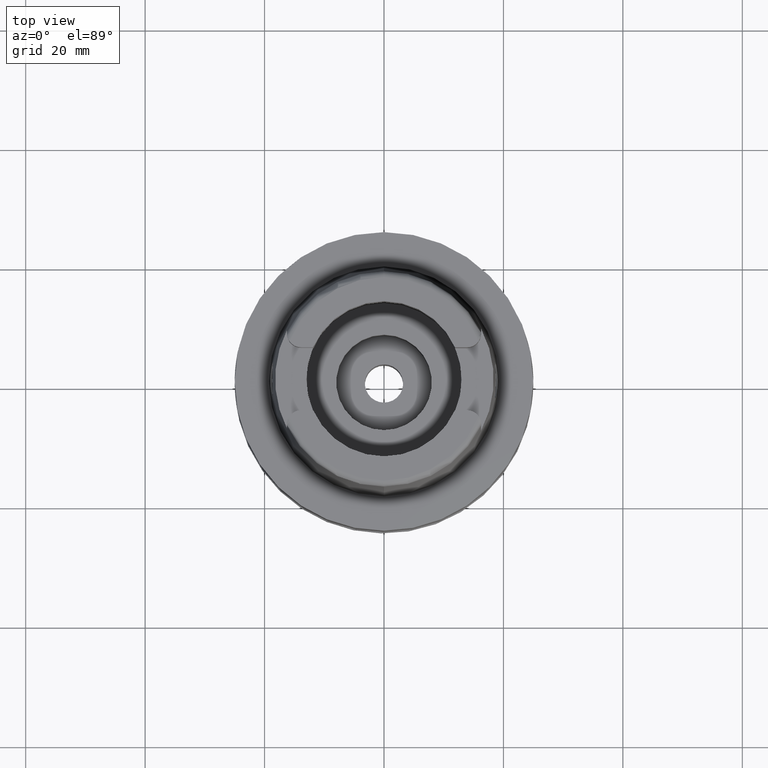
[diagram: clean part render]
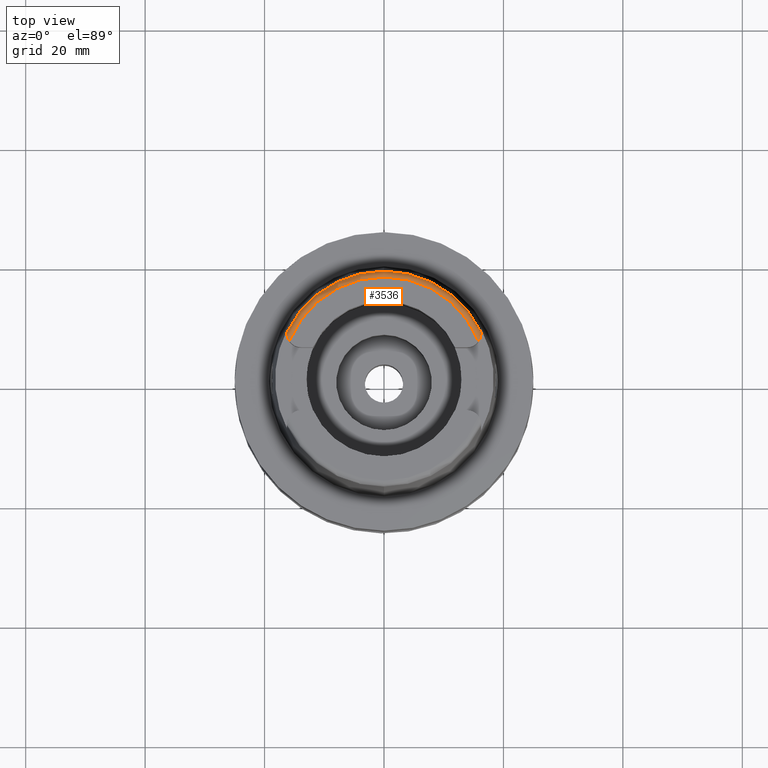
[diagram: same view with one face highlighted and labeled with its STEP entity id]
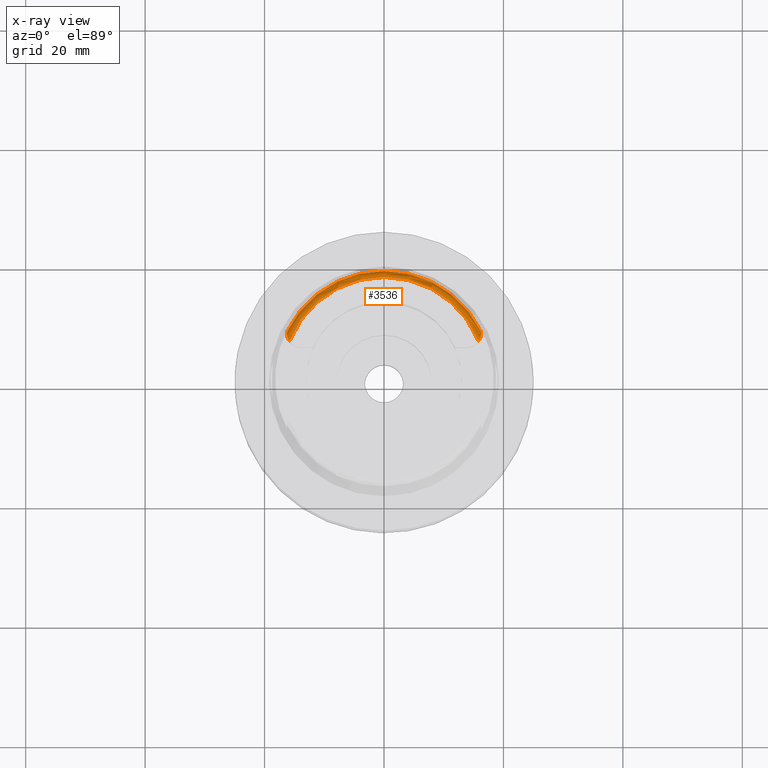
[diagram: x-ray of the same camera — body ghosted, the highlighted face saturated]
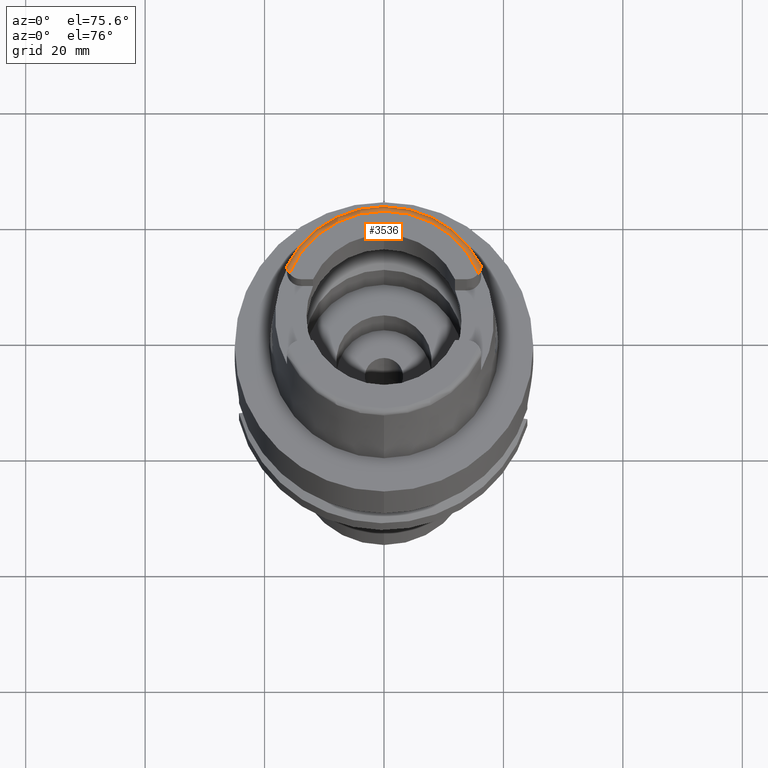
[diagram: same view with one face highlighted and labeled with its STEP entity id]
A machine part, top view. The second image highlights one B-rep face of the part: STEP entity #3536.
The next image is the same camera in x-ray: the body ghosted, the highlighted face saturated — about 0% of this face is hidden behind the body in this view.
A second angle (auxiliary view) of the same face is appended — the face is thin or edge-on in the first view.
In plain terms, the highlighted toroidal blend (fillet) surface has major radius 17.0488 mm and minor (blend) radius 1 mm.
Its self-contained STEP definition (entity closure, byte-faithful):
#13 = AXIS2_PLACEMENT_3D ( 'NONE', #879, #40, #4678 ) ;
#40 = DIRECTION ( 'NONE',  ( 0.0000000000000000000, 0.0000000000000000000, -1.000000000000000000 ) ) ;
#79 = B_SPLINE_CURVE_WITH_KNOTS ( 'NONE', 3,
 ( #589, #165, #1349, #3031 ),
 .UNSPECIFIED., .F., .F.,
 ( 4, 4 ),
 ( 0.0000000000000000000, 1.000000000000000000 ),
 .UNSPECIFIED. ) ;
#145 = CARTESIAN_POINT ( 'NONE',  ( -16.23935494077172947, 7.335910855000000730, 24.63767207810960969 ) ) ;
#165 = CARTESIAN_POINT ( 'NONE',  ( -16.26000000000000156, 7.756979617624322643, 24.28205642436010336 ) ) ;
#219 = CARTESIAN_POINT ( 'NONE',  ( 16.22839670243273247, 7.245355834585446964, 24.69784615082136625 ) ) ;
#231 = CARTESIAN_POINT ( 'NONE',  ( -16.08058035240569694, 6.733786588547267193, 24.92888816074173874 ) ) ;
#247 = CARTESIAN_POINT ( 'NONE',  ( 16.25344741752731892, 7.471586145477474794, 24.54349424203698860 ) ) ;
#328 = VERTEX_POINT ( 'NONE', #4964 ) ;
#503 = DIRECTION ( 'NONE',  ( 0.0000000000000000000, 1.000000000000000000, 0.0000000000000000000 ) ) ;
#570 = CARTESIAN_POINT ( 'NONE',  ( -16.22521617187599929, 7.243413556453329072, 24.69467769267489743 ) ) ;
#580 = B_SPLINE_CURVE_WITH_KNOTS ( 'NONE', 3,
 ( #5472, #3365, #2936, #4277 ),
 .UNSPECIFIED., .F., .F.,
 ( 4, 4 ),
 ( 0.0000000000000000000, 1.000000000000000000 ),
 .UNSPECIFIED. ) ;
#589 = CARTESIAN_POINT ( 'NONE',  ( -16.26000000000000156, 7.649999999999999467, 24.38968791394999869 ) ) ;
#825 = CARTESIAN_POINT ( 'NONE',  ( 0.0000000000000000000, 18.04750486565000145, 24.04993752584000077 ) ) ;
#828 = CIRCLE ( 'NONE', #3025, 18.04750486565000145 ) ;
#832 = EDGE_CURVE ( 'NONE', #1632, #2681, #5112, .T. ) ;
#879 = CARTESIAN_POINT ( 'NONE',  ( 0.0000000000000000000, 0.0000000000000000000, 24.04993752584000077 ) ) ;
#919 = TOROIDAL_SURFACE ( 'NONE', #4720, 17.04875252221999560, 1.000000000000000000 ) ;
#981 = CARTESIAN_POINT ( 'NONE',  ( -16.00841666764786453, 6.584475460020398074, 24.96566545704687101 ) ) ;
#1105 = CARTESIAN_POINT ( 'NONE',  ( 15.90697457532996850, 6.397319259819720827, 24.99999999999999645 ) ) ;
#1153 = EDGE_CURVE ( 'NONE', #328, #4174, #580, .T. ) ;
#1287 = VERTEX_POINT ( 'NONE', #3134 ) ;
#1314 = DIRECTION ( 'NONE',  ( 0.0000000000000000000, 0.0000000000000000000, -1.000000000000000000 ) ) ;
#1349 = CARTESIAN_POINT ( 'NONE',  ( -16.26000000000000156, 7.817317801012321432, 24.16880882101343886 ) ) ;
#1401 = CARTESIAN_POINT ( 'NONE',  ( 16.26000000000000512, 7.611323203165833995, 24.42860038482855956 ) ) ;
#1413 = CARTESIAN_POINT ( 'NONE',  ( -16.25642365100316056, 7.476984764354736690, 24.54393345577880936 ) ) ;
#1458 = CARTESIAN_POINT ( 'NONE',  ( 0.0000000000000000000, 0.0000000000000000000, 24.04993752584000077 ) ) ;
#1482 = CARTESIAN_POINT ( 'NONE',  ( 15.84131538932999739, 6.301800480795000325, 25.00000000000000000 ) ) ;
#1494 = CARTESIAN_POINT ( 'NONE',  ( -15.96625585798465785, 6.504189616315832367, 24.98176062403130970 ) ) ;
#1632 = VERTEX_POINT ( 'NONE', #3210 ) ;
#1808 = ORIENTED_EDGE ( 'NONE', *, *, #4490, .F. ) ;
#1824 = CARTESIAN_POINT ( 'NONE',  ( -16.23496557060675372, 7.304328783145807691, 24.65775830273903324 ) ) ;
#1899 = CARTESIAN_POINT ( 'NONE',  ( 16.14804313198780861, 6.925410722144819786, 24.85478500402254198 ) ) ;
#1922 = CARTESIAN_POINT ( 'NONE',  ( 16.20468902184572713, 7.121967773455988748, 24.76576639495302246 ) ) ;
#1926 = ORIENTED_EDGE ( 'NONE', *, *, #1153, .F. ) ;
#2119 = B_SPLINE_CURVE_WITH_KNOTS ( 'NONE', 3,
 ( #4023, #4837, #3157, #2743, #1494, #4779, #981, #231, #3607, #3183, #2661, #4365, #570, #1824, #145, #1413, #4807, #2692 ),
 .UNSPECIFIED., .F., .F.,
 ( 4, 2, 2, 2, 2, 2, 2, 2, 4 ),
 ( 0.0000000000000000000, 0.1250000000000023315, 0.1875000000000013600, 0.2500000000000003886, 0.4999999999999979461, 0.6249999999999981126, 0.6874999999999970024, 0.7499999999999960032, 1.000000000000000000 ),
 .UNSPECIFIED. ) ;
#2365 = CARTESIAN_POINT ( 'NONE',  ( 16.25516810167746939, 7.496549958051121010, 24.52447694836609315 ) ) ;
#2587 = B_SPLINE_CURVE_WITH_KNOTS ( 'NONE', 3,
 ( #5206, #1401, #3117, #2365, #247, #3592, #4063, #219, #1922, #1899, #3652, #3230, #4520, #5284, #4874, #5308, #1105, #1482 ),
 .UNSPECIFIED., .F., .F.,
 ( 4, 2, 2, 2, 2, 2, 2, 2, 4 ),
 ( 0.0000000000000000000, 0.1250000000000021649, 0.1875000000000024147, 0.2500000000000026645, 0.5000000000000051070, 0.6250000000000065503, 0.6875000000000066613, 0.7500000000000067724, 1.000000000000000000 ),
 .UNSPECIFIED. ) ;
#2661 = CARTESIAN_POINT ( 'NONE',  ( -16.20091124494840074, 7.119143384441859901, 24.76404916784067112 ) ) ;
#2681 = VERTEX_POINT ( 'NONE', #3638 ) ;
#2692 = CARTESIAN_POINT ( 'NONE',  ( -16.26000000000000156, 7.649999999999999467, 24.38968791394999869 ) ) ;
#2696 = ORIENTED_EDGE ( 'NONE', *, *, #4269, .F. ) ;
#2743 = CARTESIAN_POINT ( 'NONE',  ( -15.95142052834806812, 6.477598223787882858, 24.98610333259528105 ) ) ;
#2936 = CARTESIAN_POINT ( 'NONE',  ( 16.26000000000000156, 7.756962572982235571, 24.28207357286040491 ) ) ;
#3025 = AXIS2_PLACEMENT_3D ( 'NONE', #1458, #4322, #503 ) ;
#3031 = CARTESIAN_POINT ( 'NONE',  ( -16.26000040461999774, 7.831014550164000276, 24.04994510391000162 ) ) ;
#3084 = ORIENTED_EDGE ( 'NONE', *, *, #832, .T. ) ;
#3087 = CARTESIAN_POINT ( 'NONE',  ( 16.26000000000000156, 7.649999999999999467, 24.38968791394999869 ) ) ;
#3117 = CARTESIAN_POINT ( 'NONE',  ( 16.25906981596299516, 7.568094461879278256, 24.46716170229239751 ) ) ;
#3134 = CARTESIAN_POINT ( 'NONE',  ( -16.26000040461999774, 7.831014550164000276, 24.04994510391000162 ) ) ;
#3157 = CARTESIAN_POINT ( 'NONE',  ( -15.90587674391639261, 6.399456462586288197, 24.99652583314882293 ) ) ;
#3183 = CARTESIAN_POINT ( 'NONE',  ( -16.18554076064008385, 7.055521886518313579, 24.79586306668399232 ) ) ;
#3210 = CARTESIAN_POINT ( 'NONE',  ( -15.84131538932999739, 6.301800480794000237, 25.00000000000000000 ) ) ;
#3230 = CARTESIAN_POINT ( 'NONE',  ( 16.09036084666226429, 6.766916573822472358, 24.91401646659290492 ) ) ;
#3317 = ORIENTED_EDGE ( 'NONE', *, *, #4168, .F. ) ;
#3365 = CARTESIAN_POINT ( 'NONE',  ( 16.26000000000000156, 7.817315016195341748, 24.16882291091421564 ) ) ;
#3424 = AXIS2_PLACEMENT_3D ( 'NONE', #5478, #1314, #3478 ) ;
#3478 = DIRECTION ( 'NONE',  ( -0.9291773910543710269, 0.3696341109169885564, 0.0000000000000000000 ) ) ;
#3536 = ADVANCED_FACE ( 'NONE', ( #5425 ), #919, .T. ) ;
#3540 = CARTESIAN_POINT ( 'NONE',  ( -16.26000000000000156, 7.649999999999999467, 24.38968791394999869 ) ) ;
#3592 = CARTESIAN_POINT ( 'NONE',  ( 16.24895309171505176, 7.419467146579104444, 24.58135325267140558 ) ) ;
#3607 = CARTESIAN_POINT ( 'NONE',  ( -16.12967067124113640, 6.861665314423088802, 24.88364652657513432 ) ) ;
#3638 = CARTESIAN_POINT ( 'NONE',  ( 15.84131538932999739, 6.301800480795000325, 25.00000000000000000 ) ) ;
#3652 = CARTESIAN_POINT ( 'NONE',  ( 16.12647088039700449, 6.861143724296863589, 24.88072019579882266 ) ) ;
#3699 = VERTEX_POINT ( 'NONE', #3540 ) ;
#3736 = DIRECTION ( 'NONE',  ( -0.0008255998758100714869, -0.9999996591923645539, 0.0000000000000000000 ) ) ;
#3868 = ORIENTED_EDGE ( 'NONE', *, *, #4786, .F. ) ;
#4023 = CARTESIAN_POINT ( 'NONE',  ( -15.84131538932999739, 6.301800480794000237, 25.00000000000000000 ) ) ;
#4063 = CARTESIAN_POINT ( 'NONE',  ( 16.24635612508560456, 7.393772195971195949, 24.59922458510065013 ) ) ;
#4068 = EDGE_LOOP ( 'NONE', ( #3084, #1808, #1926, #3317, #3868, #2696, #4674 ) ) ;
#4145 = DIRECTION ( 'NONE',  ( 0.0000000000000000000, 0.0000000000000000000, 1.000000000000000000 ) ) ;
#4168 = EDGE_CURVE ( 'NONE', #4729, #328, #828, .T. ) ;
#4174 = VERTEX_POINT ( 'NONE', #3087 ) ;
#4269 = EDGE_CURVE ( 'NONE', #3699, #1287, #79, .T. ) ;
#4277 = CARTESIAN_POINT ( 'NONE',  ( 16.26000000000000156, 7.649999999999999467, 24.38968791394999869 ) ) ;
#4322 = DIRECTION ( 'NONE',  ( 0.0000000000000000000, 0.0000000000000000000, -1.000000000000000000 ) ) ;
#4365 = CARTESIAN_POINT ( 'NONE',  ( -16.21967615664465967, 7.212592958068883675, 24.71249920125627142 ) ) ;
#4367 = CIRCLE ( 'NONE', #13, 18.04750486565000145 ) ;
#4490 = EDGE_CURVE ( 'NONE', #4174, #2681, #2587, .T. ) ;
#4520 = CARTESIAN_POINT ( 'NONE',  ( 16.07769908709887474, 6.735869355588694596, 24.92418080404587144 ) ) ;
#4674 = ORIENTED_EDGE ( 'NONE', *, *, #5464, .F. ) ;
#4678 = DIRECTION ( 'NONE',  ( -0.9009556354130529021, 0.4339112155930774928, 0.0000000000000000000 ) ) ;
#4720 = AXIS2_PLACEMENT_3D ( 'NONE', #5040, #4145, #3736 ) ;
#4729 = VERTEX_POINT ( 'NONE', #825 ) ;
#4779 = CARTESIAN_POINT ( 'NONE',  ( -15.99515335809936367, 6.558454667888338641, 24.97133812347777138 ) ) ;
#4786 = EDGE_CURVE ( 'NONE', #1287, #4729, #4367, .T. ) ;
#4807 = CARTESIAN_POINT ( 'NONE',  ( -16.26000000000000867, 7.572638004034232040, 24.46752130921433732 ) ) ;
#4837 = CARTESIAN_POINT ( 'NONE',  ( -15.87413174455794262, 6.349540612442419629, 24.99999999999999289 ) ) ;
#4874 = CARTESIAN_POINT ( 'NONE',  ( 16.03650687744163505, 6.642597593092695263, 24.95134675376048605 ) ) ;
#4964 = CARTESIAN_POINT ( 'NONE',  ( 16.25997406183000393, 7.831071151783000950, 24.04993752584000077 ) ) ;
#5040 = CARTESIAN_POINT ( 'NONE',  ( 0.0000000000000000000, 0.0000000000000000000, 24.00000000000000000 ) ) ;
#5112 = CIRCLE ( 'NONE', #3424, 17.04875252221999560 ) ;
#5206 = CARTESIAN_POINT ( 'NONE',  ( 16.26000000000000156, 7.649999999999999467, 24.38968791394999869 ) ) ;
#5284 = CARTESIAN_POINT ( 'NONE',  ( 16.05117478004920173, 6.674543088104194943, 24.94264063999501602 ) ) ;
#5308 = CARTESIAN_POINT ( 'NONE',  ( 15.96834533945842516, 6.501558406581732008, 24.98609907250299500 ) ) ;
#5425 = FACE_OUTER_BOUND ( 'NONE', #4068, .T. ) ;
#5464 = EDGE_CURVE ( 'NONE', #1632, #3699, #2119, .T. ) ;
#5472 = CARTESIAN_POINT ( 'NONE',  ( 16.25997406183000393, 7.831071151783000950, 24.04993752584000077 ) ) ;
#5478 = CARTESIAN_POINT ( 'NONE',  ( 0.0000000000000000000, 0.0000000000000000000, 25.00000000000000000 ) ) ;